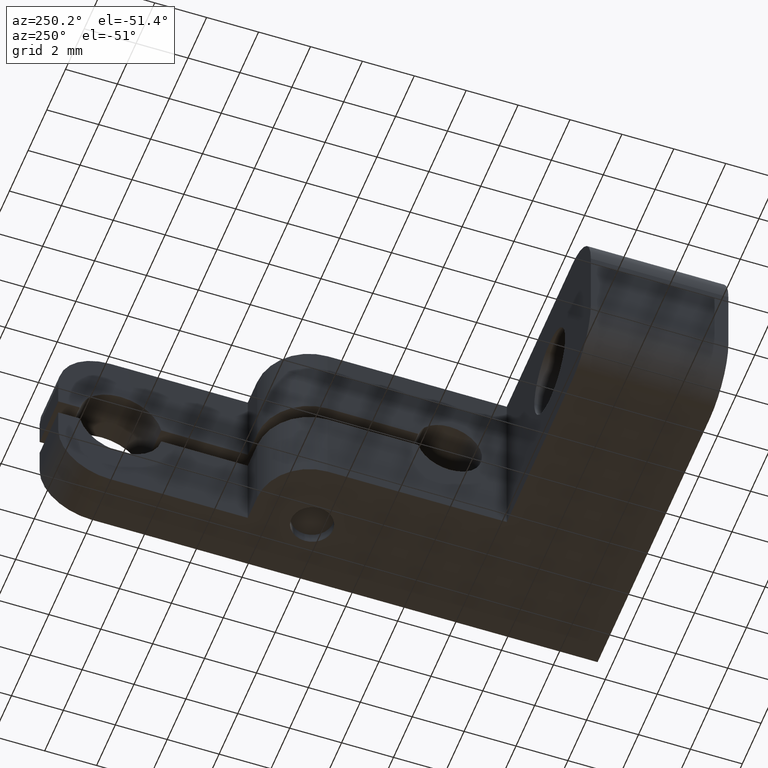
[diagram: clean part render]
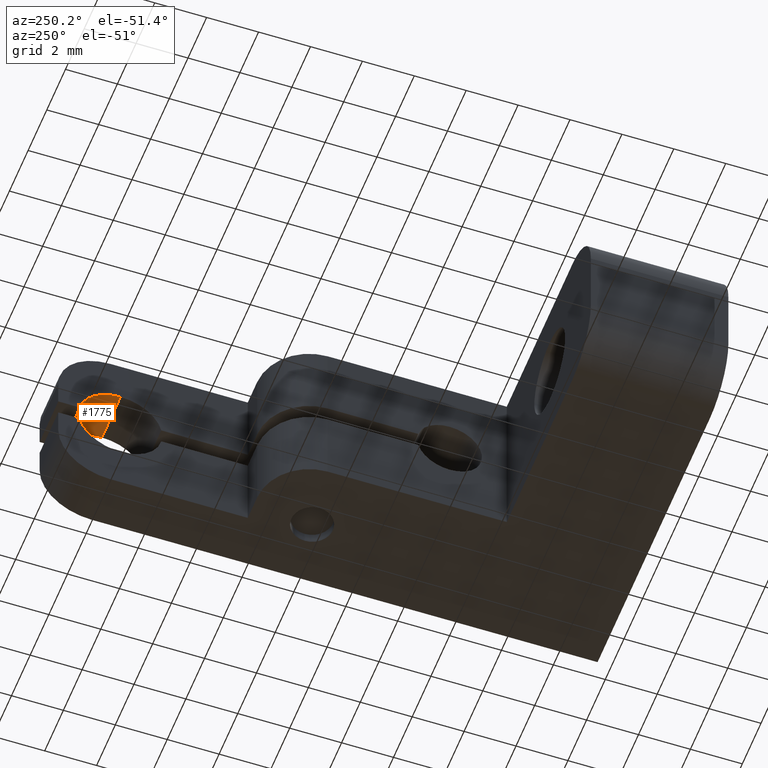
[diagram: same view with one face highlighted and labeled with its STEP entity id]
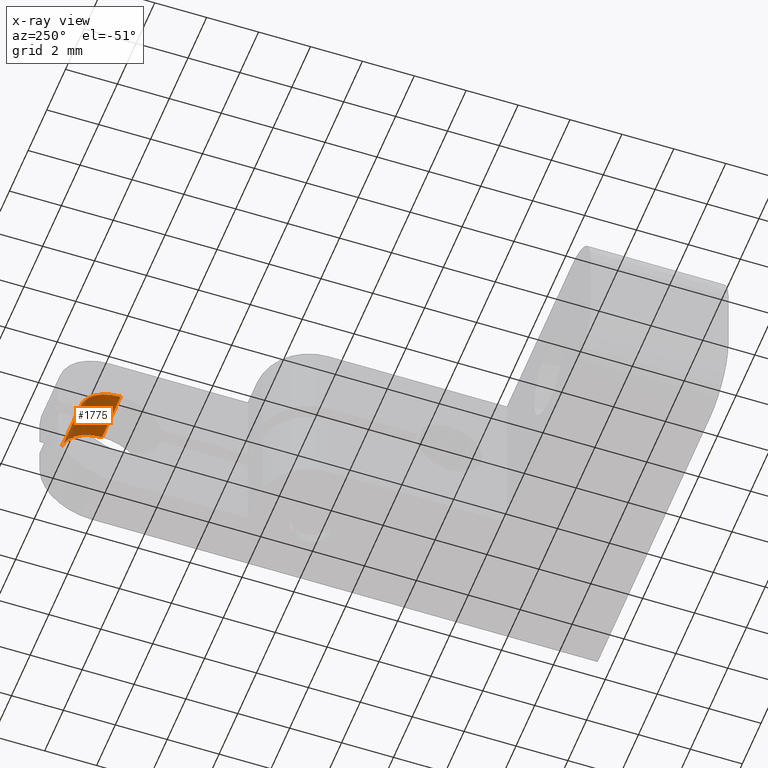
[diagram: x-ray of the same camera — body ghosted, the highlighted face saturated]
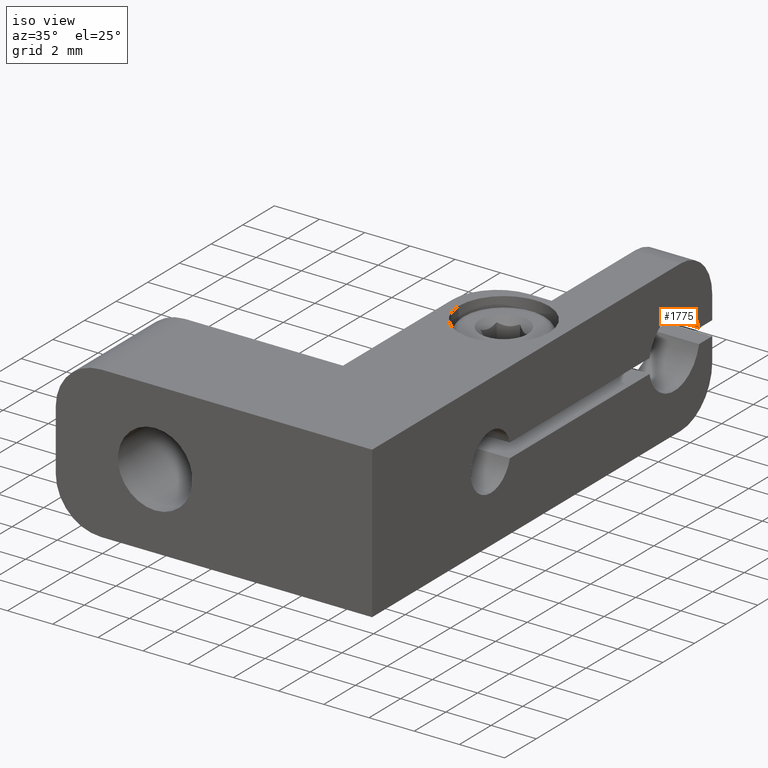
[diagram: same view with one face highlighted and labeled with its STEP entity id]
A machine part, auxiliary view. The second image highlights one B-rep face of the part: STEP entity #1775.
The next image is the same camera in x-ray: the body ghosted, the highlighted face saturated — about 10% of this face is hidden behind the body in this view.
A second angle (iso view) of the same face is appended — the face is thin or edge-on in the first view.
In plain terms, the highlighted cylindrical surface (partial cylindrical patch) has radius 1.6 mm, axis along (-1, 0, 0).
Its self-contained STEP definition (entity closure, byte-faithful):
#88 = LINE ( 'NONE', #1797, #1624 ) ;
#138 = ORIENTED_EDGE ( 'NONE', *, *, #1180, .T. ) ;
#212 = ORIENTED_EDGE ( 'NONE', *, *, #906, .T. ) ;
#303 = CARTESIAN_POINT ( 'NONE',  ( 0.000000000000000000, 20.66767343538123569, 0.3200000000000002842 ) ) ;
#323 = CARTESIAN_POINT ( 'NONE',  ( 0.000000000000000000, 19.10000000000000142, 1.599999999999999867 ) ) ;
#356 = CARTESIAN_POINT ( 'NONE',  ( -2.000000000000003553, 20.66767343538123569, 0.3200000000000001732 ) ) ;
#373 = AXIS2_PLACEMENT_3D ( 'NONE', #1384, #1718, #1896 ) ;
#388 = DIRECTION ( 'NONE',  ( 0.000000000000000000, 1.000000000000000000, -1.776356839400250070E-15 ) ) ;
#424 = AXIS2_PLACEMENT_3D ( 'NONE', #643, #801, #1476 ) ;
#430 = ORIENTED_EDGE ( 'NONE', *, *, #2015, .T. ) ;
#495 = LINE ( 'NONE', #1812, #1919 ) ;
#543 = EDGE_CURVE ( 'NONE', #1741, #1853, #1752, .T. ) ;
#585 = CIRCLE ( 'NONE', #715, 1.600000000000000755 ) ;
#590 = VERTEX_POINT ( 'NONE', #356 ) ;
#643 = CARTESIAN_POINT ( 'NONE',  ( 1.200000000000000030E-05, 19.10000000000000142, -4.336808689942017736E-16 ) ) ;
#715 = AXIS2_PLACEMENT_3D ( 'NONE', #800, #1475, #388 ) ;
#757 = VERTEX_POINT ( 'NONE', #1593 ) ;
#791 = CYLINDRICAL_SURFACE ( 'NONE', #424, 1.600000000000000311 ) ;
#800 = CARTESIAN_POINT ( 'NONE',  ( -2.000000000000000000, 19.10000000000000142, -4.336808689942017736E-16 ) ) ;
#801 = DIRECTION ( 'NONE',  ( -1.000000000000000000, 0.000000000000000000, 0.000000000000000000 ) ) ;
#906 = EDGE_CURVE ( 'NONE', #757, #590, #585, .T. ) ;
#1180 = EDGE_CURVE ( 'NONE', #590, #1741, #495, .T. ) ;
#1295 = FACE_OUTER_BOUND ( 'NONE', #1528, .T. ) ;
#1363 = DIRECTION ( 'NONE',  ( -1.000000000000000000, 0.000000000000000000, 0.000000000000000000 ) ) ;
#1384 = CARTESIAN_POINT ( 'NONE',  ( 0.000000000000000000, 19.10000000000000142, -4.336808689942017736E-16 ) ) ;
#1433 = ORIENTED_EDGE ( 'NONE', *, *, #543, .T. ) ;
#1475 = DIRECTION ( 'NONE',  ( -1.000000000000000000, -1.188166764367676342E-16, 0.000000000000000000 ) ) ;
#1476 = DIRECTION ( 'NONE',  ( 0.000000000000000000, 0.000000000000000000, 1.000000000000000000 ) ) ;
#1528 = EDGE_LOOP ( 'NONE', ( #1433, #430, #212, #138 ) ) ;
#1593 = CARTESIAN_POINT ( 'NONE',  ( -2.000000000000000000, 19.10000000000000142, 1.599999999999999867 ) ) ;
#1624 = VECTOR ( 'NONE', #1363, 1000.000000000000000 ) ;
#1632 = DIRECTION ( 'NONE',  ( 1.000000000000000000, -0.000000000000000000, -0.000000000000000000 ) ) ;
#1718 = DIRECTION ( 'NONE',  ( 1.000000000000000000, -0.000000000000000000, -0.000000000000000000 ) ) ;
#1741 = VERTEX_POINT ( 'NONE', #303 ) ;
#1752 = CIRCLE ( 'NONE', #373, 1.600000000000000311 ) ;
#1775 = ADVANCED_FACE ( 'NONE', ( #1295 ), #791, .F. ) ;
#1797 = CARTESIAN_POINT ( 'NONE',  ( 1.200000000000000030E-05, 19.10000000000000142, 1.599999999999999867 ) ) ;
#1812 = CARTESIAN_POINT ( 'NONE',  ( -14.00099999999999945, 20.66767343538123569, 0.3200000000000001732 ) ) ;
#1853 = VERTEX_POINT ( 'NONE', #323 ) ;
#1896 = DIRECTION ( 'NONE',  ( 0.000000000000000000, -2.168404344971008474E-15, 1.000000000000000000 ) ) ;
#1919 = VECTOR ( 'NONE', #1632, 1000.000000000000000 ) ;
#2015 = EDGE_CURVE ( 'NONE', #1853, #757, #88, .T. ) ;